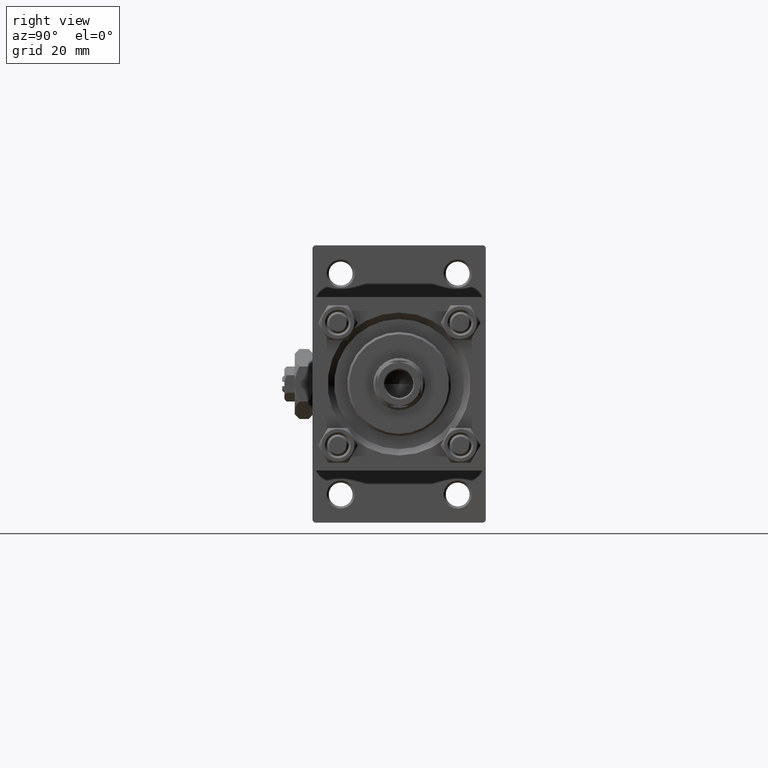
[diagram: clean part render]
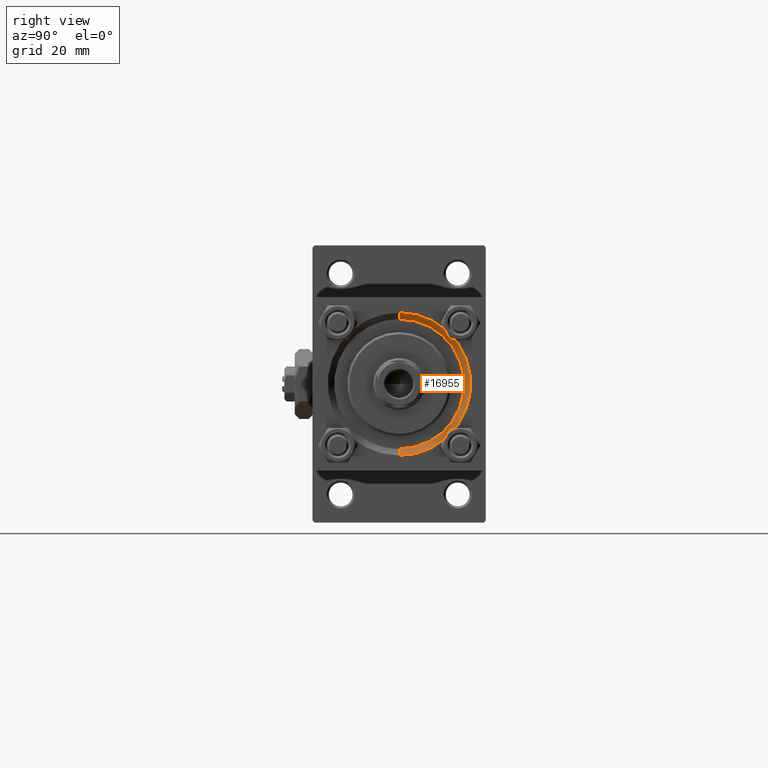
[diagram: same view with one face highlighted and labeled with its STEP entity id]
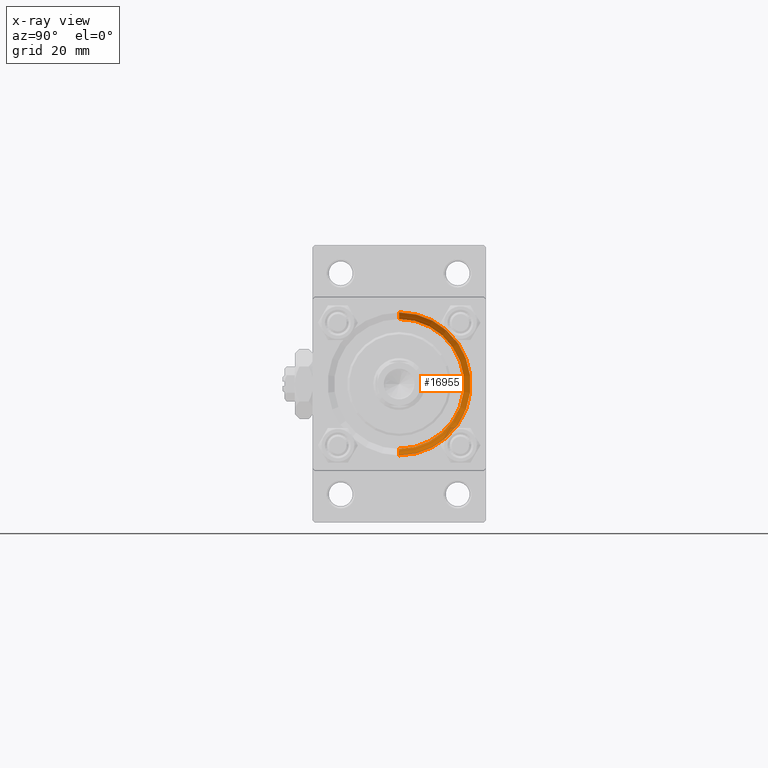
[diagram: x-ray of the same camera — body ghosted, the highlighted face saturated]
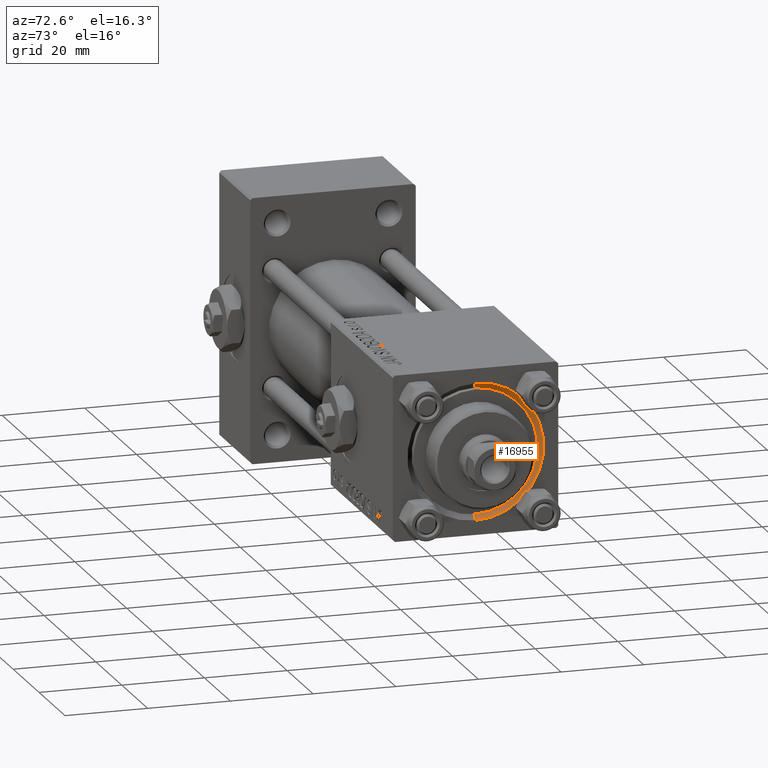
[diagram: same view with one face highlighted and labeled with its STEP entity id]
A machine part, right view. The second image highlights one B-rep face of the part: STEP entity #16955.
The next image is the same camera in x-ray: the body ghosted, the highlighted face saturated — about 0% of this face is hidden behind the body in this view.
A second angle (auxiliary view) of the same face is appended — the face is thin or edge-on in the first view.
In plain terms, the highlighted conical surface has half-angle 45 deg.
Its self-contained STEP definition (entity closure, byte-faithful):
#833 = EDGE_CURVE ( 'NONE', #14500, #30994, #12630, .T. ) ;
#4565 = DIRECTION ( 'NONE',  ( 0.000000000000000000, 0.000000000000000000, 1.000000000000000000 ) ) ;
#4817 = CARTESIAN_POINT ( 'NONE',  ( 134.0000000000000000, 2.020667218593131128E-15, 16.49999999999998579 ) ) ;
#4971 = DIRECTION ( 'NONE',  ( 0.000000000000000000, 0.000000000000000000, -1.000000000000000000 ) ) ;
#6795 = CARTESIAN_POINT ( 'NONE',  ( 132.5000000000000000, 0.000000000000000000, -15.00000000000000000 ) ) ;
#6969 = DIRECTION ( 'NONE',  ( 0.7071067811865507924, 8.659560562354892183E-17, 0.7071067811865441310 ) ) ;
#10207 = FACE_OUTER_BOUND ( 'NONE', #28522, .T. ) ;
#12630 = CIRCLE ( 'NONE', #18487, 15.00000000000000000 ) ;
#13680 = LINE ( 'NONE', #17619, #33981 ) ;
#14500 = VERTEX_POINT ( 'NONE', #6795 ) ;
#15398 = VERTEX_POINT ( 'NONE', #51944 ) ;
#16748 = EDGE_CURVE ( 'NONE', #14500, #15398, #13680, .T. ) ;
#16955 = ADVANCED_FACE ( 'NONE', ( #10207 ), #49090, .F. ) ;
#17619 = CARTESIAN_POINT ( 'NONE',  ( 132.5000000000000000, 0.000000000000000000, -15.00000000000000000 ) ) ;
#18452 = ORIENTED_EDGE ( 'NONE', *, *, #16748, .T. ) ;
#18487 = AXIS2_PLACEMENT_3D ( 'NONE', #40511, #24497, #4565 ) ;
#19812 = DIRECTION ( 'NONE',  ( 0.000000000000000000, 0.000000000000000000, 1.000000000000000000 ) ) ;
#21944 = LINE ( 'NONE', #25884, #27588 ) ;
#23496 = EDGE_CURVE ( 'NONE', #46674, #15398, #30806, .T. ) ;
#23750 = CARTESIAN_POINT ( 'NONE',  ( 134.0000000000000000, 0.000000000000000000, 0.000000000000000000 ) ) ;
#24497 = DIRECTION ( 'NONE',  ( 1.000000000000000000, 0.000000000000000000, 0.000000000000000000 ) ) ;
#25884 = CARTESIAN_POINT ( 'NONE',  ( 132.5000000000000000, 1.836970198721029589E-15, 15.00000000000000000 ) ) ;
#26388 = EDGE_CURVE ( 'NONE', #30994, #46674, #21944, .T. ) ;
#27588 = VECTOR ( 'NONE', #6969, 1000.000000000000114 ) ;
#28522 = EDGE_LOOP ( 'NONE', ( #43123, #42872, #18452, #35828 ) ) ;
#29441 = DIRECTION ( 'NONE',  ( 0.7071067811865507924, 0.000000000000000000, -0.7071067811865441310 ) ) ;
#30806 = CIRCLE ( 'NONE', #51753, 16.49999999999998579 ) ;
#30994 = VERTEX_POINT ( 'NONE', #45508 ) ;
#33981 = VECTOR ( 'NONE', #29441, 1000.000000000000114 ) ;
#35828 = ORIENTED_EDGE ( 'NONE', *, *, #23496, .F. ) ;
#39762 = DIRECTION ( 'NONE',  ( -1.000000000000000000, -0.000000000000000000, -0.000000000000000000 ) ) ;
#40511 = CARTESIAN_POINT ( 'NONE',  ( 132.5000000000000000, 0.000000000000000000, 0.000000000000000000 ) ) ;
#40926 = DIRECTION ( 'NONE',  ( 1.000000000000000000, 0.000000000000000000, 0.000000000000000000 ) ) ;
#42872 = ORIENTED_EDGE ( 'NONE', *, *, #833, .F. ) ;
#43123 = ORIENTED_EDGE ( 'NONE', *, *, #26388, .F. ) ;
#44100 = AXIS2_PLACEMENT_3D ( 'NONE', #49846, #40926, #4971 ) ;
#45508 = CARTESIAN_POINT ( 'NONE',  ( 132.5000000000000000, 1.836970198721029589E-15, 15.00000000000000000 ) ) ;
#46674 = VERTEX_POINT ( 'NONE', #4817 ) ;
#49090 = CONICAL_SURFACE ( 'NONE', #44100, 15.00000000000000000, 0.7853981633974437271 ) ;
#49846 = CARTESIAN_POINT ( 'NONE',  ( 132.5000000000000000, 0.000000000000000000, 0.000000000000000000 ) ) ;
#51753 = AXIS2_PLACEMENT_3D ( 'NONE', #23750, #39762, #19812 ) ;
#51944 = CARTESIAN_POINT ( 'NONE',  ( 134.0000000000000000, 0.000000000000000000, -16.49999999999998579 ) ) ;